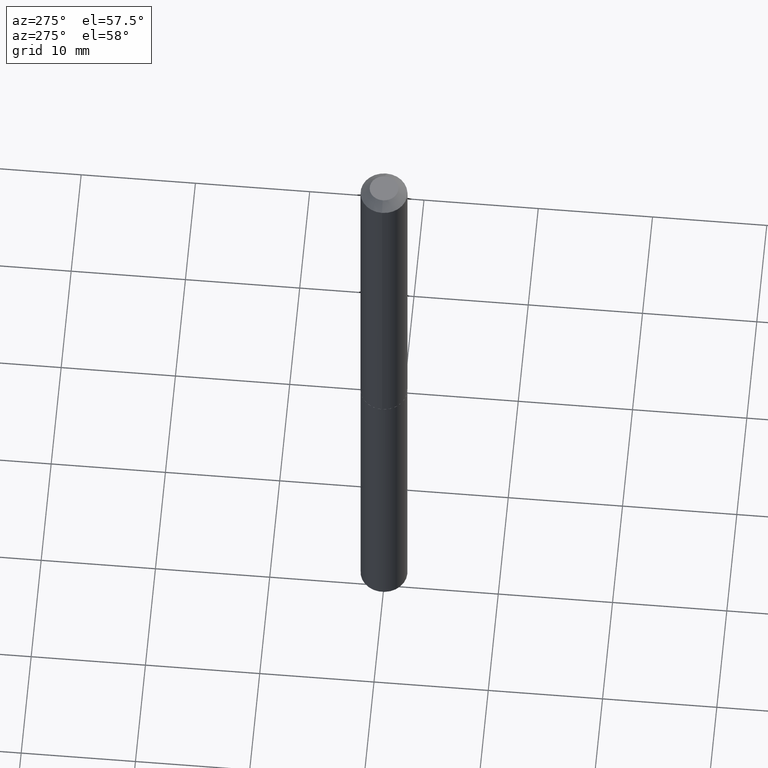
[diagram: clean part render]
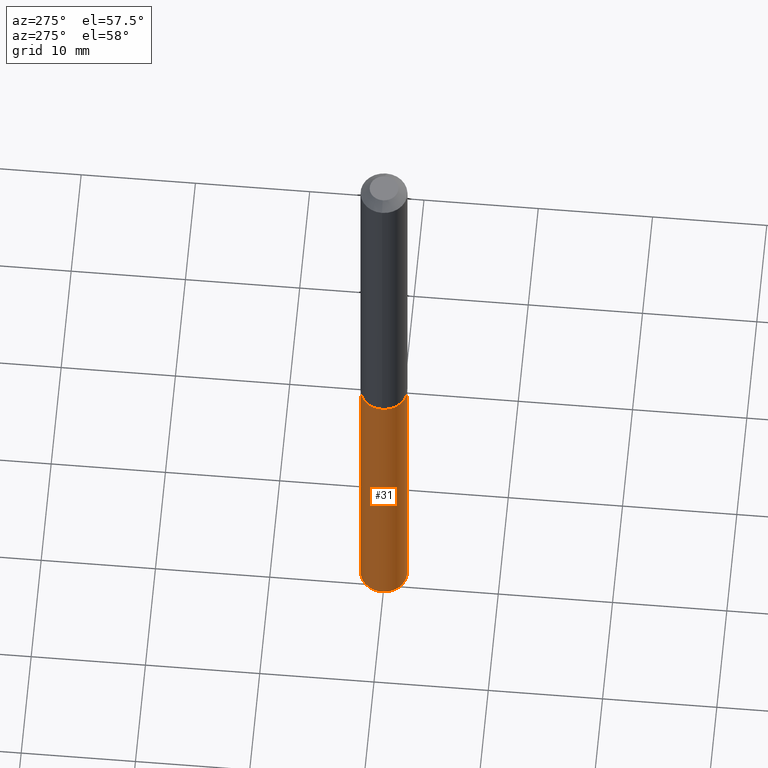
[diagram: same view with one face highlighted and labeled with its STEP entity id]
A machine part, auxiliary view. The second image highlights one B-rep face of the part: STEP entity #31.
In plain terms, the highlighted cylindrical surface (edge-blend (fillet) strip) has radius 2.0447 mm, axis along (-0, 0, 1).
Its self-contained STEP definition (entity closure, byte-faithful):
#3 = LINE ( 'NONE', #121, #148 ) ;
#31 = ADVANCED_FACE ( 'NONE', ( #244 ), #254, .T. ) ;
#36 = CARTESIAN_POINT ( 'NONE',  ( 5.719869022869407167E-16, 0.08049999999999550571, -1.286000000000000476 ) ) ;
#64 = DIRECTION ( 'NONE',  ( -2.445462856244294093E-29, 3.491489859497081340E-15, 1.000000000000000000 ) ) ;
#73 = CARTESIAN_POINT ( 'NONE',  ( 5.995379515022905912E-29, -8.559832841138121556E-15, -2.451630720168282096 ) ) ;
#90 = VERTEX_POINT ( 'NONE', #189 ) ;
#119 = VERTEX_POINT ( 'NONE', #276 ) ;
#121 = CARTESIAN_POINT ( 'NONE',  ( 5.719869022869119232E-16, 0.08049999999999550571, -1.286000000000000476 ) ) ;
#136 = ORIENTED_EDGE ( 'NONE', *, *, #211, .F. ) ;
#137 = CARTESIAN_POINT ( 'NONE',  ( -5.621284955537130065E-16, -0.08050000000000449851, -1.285999999999999810 ) ) ;
#146 = VERTEX_POINT ( 'NONE', #336 ) ;
#148 = VECTOR ( 'NONE', #241, 39.37007874015748143 ) ;
#157 = DIRECTION ( 'NONE',  ( -6.982962677686266711E-15, -1.000000000000000000, 3.393599992129519526E-15 ) ) ;
#168 = LINE ( 'NONE', #137, #351 ) ;
#184 = VERTEX_POINT ( 'NONE', #36 ) ;
#189 = CARTESIAN_POINT ( 'NONE',  ( -5.621284955537130065E-16, -0.08050000000000449851, -1.285999999999999810 ) ) ;
#197 = DIRECTION ( 'NONE',  ( -2.445462856244294093E-29, 3.491489859497081340E-15, 1.000000000000000000 ) ) ;
#200 = DIRECTION ( 'NONE',  ( -6.982962677686266711E-15, -1.000000000000000000, 3.393599992129519526E-15 ) ) ;
#209 = EDGE_CURVE ( 'NONE', #146, #184, #3, .T. ) ;
#211 = EDGE_CURVE ( 'NONE', #184, #90, #373, .T. ) ;
#237 = ORIENTED_EDGE ( 'NONE', *, *, #209, .F. ) ;
#241 = DIRECTION ( 'NONE',  ( -2.445462856244294093E-29, 3.491489859497080946E-15, 1.000000000000000000 ) ) ;
#244 = FACE_OUTER_BOUND ( 'NONE', #298, .T. ) ;
#245 = AXIS2_PLACEMENT_3D ( 'NONE', #73, #315, #200 ) ;
#254 = CYLINDRICAL_SURFACE ( 'NONE', #350, 0.08050000000000000211 ) ;
#255 = AXIS2_PLACEMENT_3D ( 'NONE', #341, #64, #157 ) ;
#268 = ORIENTED_EDGE ( 'NONE', *, *, #369, .T. ) ;
#276 = CARTESIAN_POINT ( 'NONE',  ( -5.621284955536844103E-16, -0.08050000000000855083, -2.451630720168281652 ) ) ;
#280 = CIRCLE ( 'NONE', #245, 0.08050000000000000211 ) ;
#281 = CARTESIAN_POINT ( 'NONE',  ( 3.144872884754086197E-29, -4.490045001752285461E-15, -1.286000000000000254 ) ) ;
#298 = EDGE_LOOP ( 'NONE', ( #237, #268, #371, #136 ) ) ;
#315 = DIRECTION ( 'NONE',  ( -2.445462856244294093E-29, 3.491489859497081340E-15, 1.000000000000000000 ) ) ;
#336 = CARTESIAN_POINT ( 'NONE',  ( 5.719869022869405194E-16, 0.08049999999999142564, -2.451630720168282096 ) ) ;
#341 = CARTESIAN_POINT ( 'NONE',  ( 3.144872884754086197E-29, -4.490045001752285461E-15, -1.286000000000000254 ) ) ;
#350 = AXIS2_PLACEMENT_3D ( 'NONE', #281, #197, #376 ) ;
#351 = VECTOR ( 'NONE', #385, 39.37007874015748143 ) ;
#359 = EDGE_CURVE ( 'NONE', #119, #90, #168, .T. ) ;
#369 = EDGE_CURVE ( 'NONE', #146, #119, #280, .T. ) ;
#371 = ORIENTED_EDGE ( 'NONE', *, *, #359, .T. ) ;
#373 = CIRCLE ( 'NONE', #255, 0.08050000000000000211 ) ;
#376 = DIRECTION ( 'NONE',  ( -6.982962677686266711E-15, -1.000000000000000000, 3.393599992129519526E-15 ) ) ;
#385 = DIRECTION ( 'NONE',  ( -2.445462856244294093E-29, 3.491489859497080946E-15, 1.000000000000000000 ) ) ;